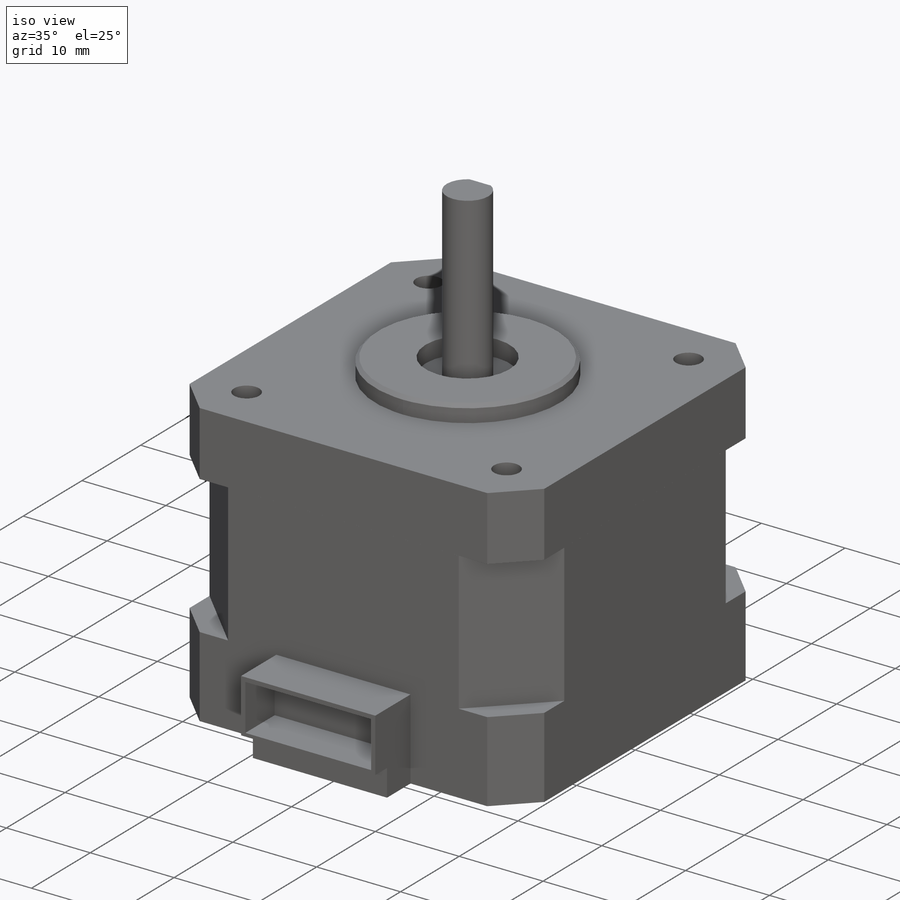
[diagram: iso view]
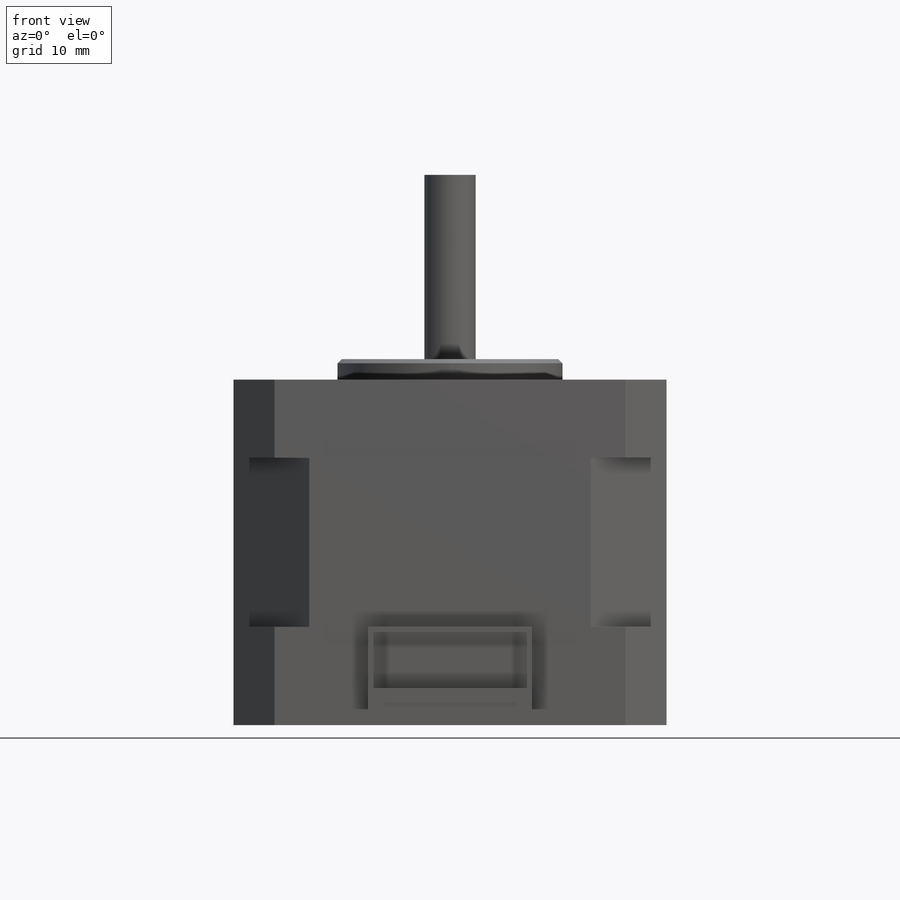
[diagram: front view]
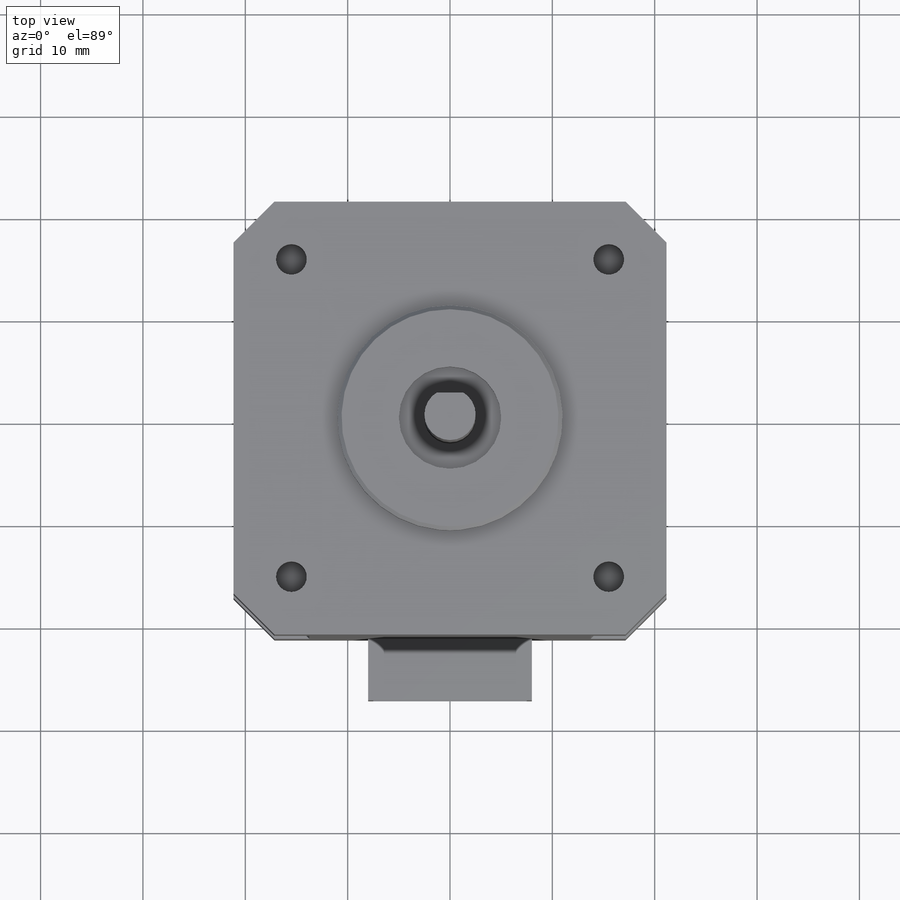
[diagram: top view]
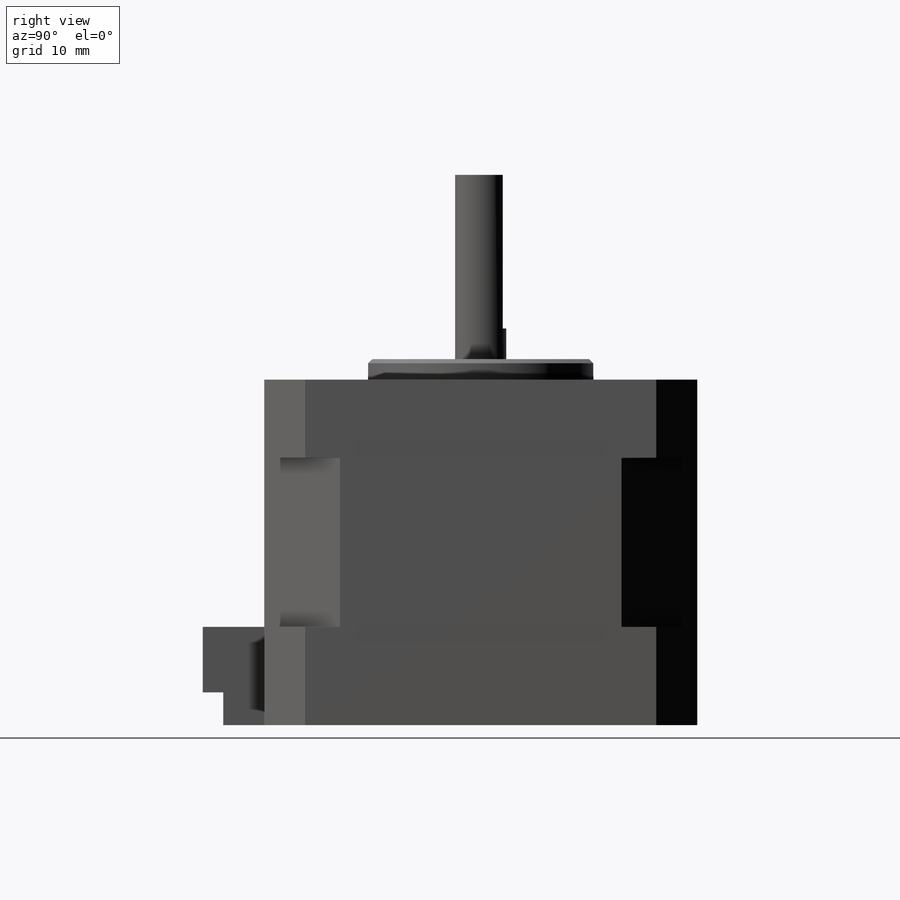
[diagram: right view]
SOLIDWORKS PART (.sldprt)
format: sldprt  version: not decoded by parser v0  size: 508,928 bytes
history: native  units: mm
features: sketch x17, extrude x12, cut_extrude x5, chamfer x2, material x1 (+13 scaffold rows collapsed)
feature tree (50):
  scaffold x13  (default folders/planes/origin — collapsed)
  material  "Material <not specified>"
  sketch  "Sketch1"  dims[c1.D1=20.0mm c1.D2=20.0mm c1.D3=40.0mm c1.D4=40.0mm c1.D5=4.5mm c1.D6=4.5mm c2.D1=42.3mm c2.D2=42.164mm c2.D3=~5.09529mm c3.D3=135.0deg c4.D3=~3.602914mm c5.D3=225.0deg c6.D3=~3.602914mm c7.D3=45.0deg c7.D4=~5.09529mm c8.D3=~5.09529mm]
  extrude  "Extrude1"  Depth=9.6mm
  chamfer  "Chamfer3"  Distance=4mm Angle=45deg
  sketch  "Sketch31"  dims[D1=13.75mm D2=27.5mm D3=~10.46518mm]
  extrude  "Boss-Extrude8"  Depth=16.5mm
  sketch  "Sketch32"
  extrude  "Boss-Extrude9"  Depth=7.65mm
  sketch  "Sketch33"  dims[D1=22.0mm]
  extrude  "Boss-Extrude10"  Depth=2mm
  sketch  "Sketch34"  dims[D1=10.0mm]
  cut_extrude  "Cut-Extrude1"  Depth=2mm
  sketch  "Sketch35"  dims[D1=5.0mm]
  extrude  "Boss-Extrude11"  Depth=20mm
  sketch  "Sketch36"  dims[D1=4.65mm]
  cut_extrude  "Cut-Extrude3"  Depth=15mm
  sketch  "Sketch37"
  extrude  "Boss-Extrude12"  Depth=0.001mm
  sketch  "Sketch38"
  extrude  "Boss-Extrude13"  Depth=0.001mm
  sketch  "Sketch39"
  extrude  "Boss-Extrude14"  Depth=0.001mm
  sketch  "Sketch40"
  extrude  "Boss-Extrude15"  Depth=0.001mm
  sketch  "Sketch41"  dims[D1=5.65mm D2=15.5mm D3=5.65mm]
  cut_extrude  "Cut-Extrude4"  Depth=6mm
  sketch  "Sketch42"  dims[D1=9.0mm]
  cut_extrude  "Cut-Extrude5"  Depth=3mm
  sketch  "Sketch43"  dims[D1=8.0mm D2=16.0mm D3=4.0mm]
  extrude  "Boss-Extrude16"  Depth=3.2mm
  sketch  "Sketch44"  dims[D1=16.0mm D2=6.4mm]
  extrude  "Boss-Extrude17"  Depth=6mm
  sketch  "Sketch45"  dims[D1=0.5mm D2=0.5mm D3=5.5mm D4=15.0mm]
  cut_extrude  "Cut-Extrude6"  Depth=5mm
  sketch  "Sketch46"
  extrude  "Boss-Extrude18"  Depth=1.5mm
  chamfer  "Chamfer4"  Distance=0.4mm Angle=45deg
decode coverage: 30 of 36 modeling features carry decoded parameters
note: ~ marks probable driven/reference dimensions
note: suppression state not decoded; provenance and decode notes live in map.json
